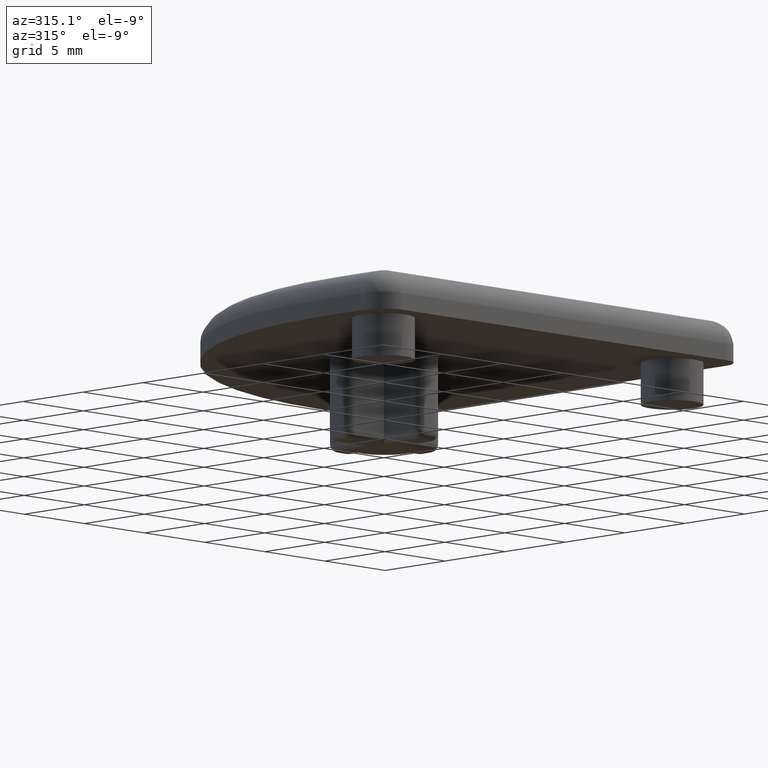
[diagram: clean part render]
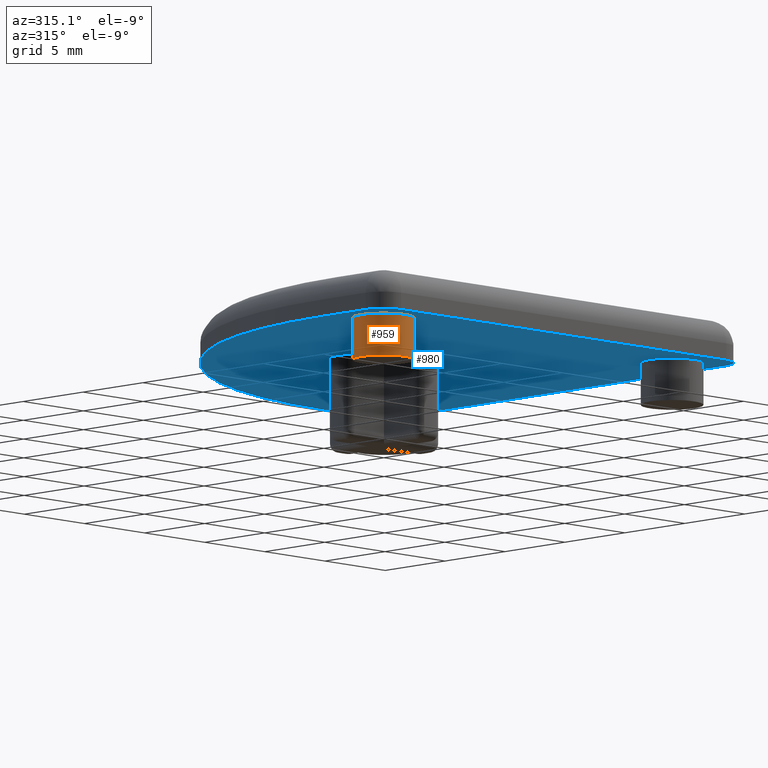
[diagram: same view with the hole feature highlighted: cylindrical wall and planar end face, labeled with their STEP entity ids]
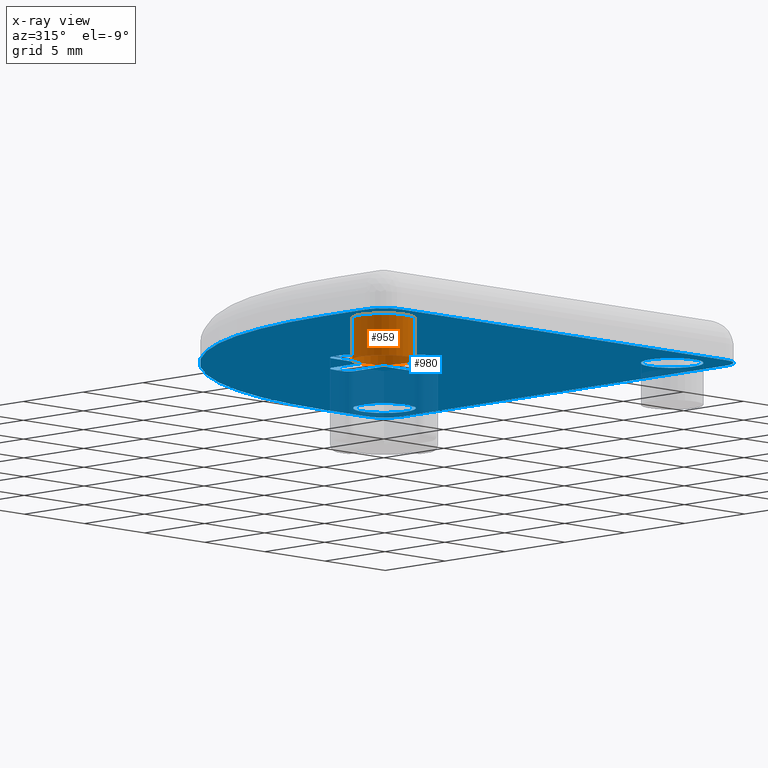
[diagram: x-ray of the same camera — body ghosted, the hole faces saturated]
A machine part, auxiliary view. The highlighted faces form one hole feature of diameter 3.7 mm: the cylindrical wall (entity #959, orange) and its adjacent planar end face (entity #980, blue) — they share a circular edge in the B-rep.
The next image is the same camera in x-ray (body ghosted, the hole faces saturated) — the bore reads through the body.
Wall:
#91=LINE('',#1675,#158);
#158=VECTOR('',#1374,1.85);
#201=CYLINDRICAL_SURFACE('',#1094,1.85);
#254=FACE_OUTER_BOUND('',#319,.T.);
#319=EDGE_LOOP('',(#798,#799,#800,#801));
#391=CIRCLE('',#1095,1.85);
#392=CIRCLE('',#1096,1.85);
#466=VERTEX_POINT('',#1672);
#467=VERTEX_POINT('',#1674);
#586=EDGE_CURVE('',#466,#466,#391,.T.);
#587=EDGE_CURVE('',#466,#467,#91,.T.);
#588=EDGE_CURVE('',#467,#467,#392,.T.);
#798=ORIENTED_EDGE('',*,*,#586,.F.);
#799=ORIENTED_EDGE('',*,*,#587,.T.);
#800=ORIENTED_EDGE('',*,*,#588,.F.);
#801=ORIENTED_EDGE('',*,*,#587,.F.);
#959=ADVANCED_FACE('',(#254),#201,.T.);
#1094=AXIS2_PLACEMENT_3D('',#1671,#1370,#1371);
#1095=AXIS2_PLACEMENT_3D('',#1673,#1372,#1373);
#1096=AXIS2_PLACEMENT_3D('',#1676,#1375,#1376);
#1370=DIRECTION('center_axis',(0.,0.,-1.));
#1371=DIRECTION('ref_axis',(1.,0.,0.));
#1372=DIRECTION('center_axis',(0.,0.,-1.));
#1373=DIRECTION('ref_axis',(1.,0.,0.));
#1374=DIRECTION('',(0.,0.,1.));
#1375=DIRECTION('center_axis',(0.,0.,1.));
#1376=DIRECTION('ref_axis',(1.,0.,0.));
#1671=CARTESIAN_POINT('Origin',(-12.,-12.,0.));
#1672=CARTESIAN_POINT('',(-13.85,-12.,-2.5));
#1673=CARTESIAN_POINT('Origin',(-12.,-12.,-2.5));
#1674=CARTESIAN_POINT('',(-13.85,-12.,0.));
#1675=CARTESIAN_POINT('',(-13.85,-12.,0.));
#1676=CARTESIAN_POINT('Origin',(-12.,-12.,0.));
End face:
#15=FACE_BOUND('',#341,.T.);
#16=FACE_BOUND('',#342,.T.);
#17=FACE_BOUND('',#343,.T.);
#18=FACE_BOUND('',#344,.T.);
#36=PLANE('',#1136);
#79=LINE('',#1634,#146);
#80=LINE('',#1636,#147);
#82=LINE('',#1642,#149);
#83=LINE('',#1644,#150);
#85=LINE('',#1651,#152);
#86=LINE('',#1653,#153);
#88=LINE('',#1659,#155);
#89=LINE('',#1661,#156);
#108=LINE('',#1748,#175);
#110=LINE('',#1754,#177);
#111=LINE('',#1757,#178);
#112=LINE('',#1759,#179);
#146=VECTOR('',#1318,10.);
#147=VECTOR('',#1321,10.);
#149=VECTOR('',#1329,10.);
#150=VECTOR('',#1332,10.);
#152=VECTOR('',#1342,10.);
#153=VECTOR('',#1345,10.);
#155=VECTOR('',#1353,10.);
#156=VECTOR('',#1356,10.);
#175=VECTOR('',#1459,10.);
#177=VECTOR('',#1467,10.);
#178=VECTOR('',#1472,10.);
#179=VECTOR('',#1475,10.);
#275=FACE_OUTER_BOUND('',#340,.T.);
#340=EDGE_LOOP('',(#874,#875,#876,#877,#878,#879,#880,#881));
#341=EDGE_LOOP('',(#882,#883,#884,#885,#886,#887,#888,#889,#890,#891,#892,
#893,#894,#895,#896,#897,#898,#899,#900,#901));
#342=EDGE_LOOP('',(#902));
#343=EDGE_LOOP('',(#903));
#344=EDGE_LOOP('',(#904));
#348=CIRCLE('',#1006,0.5);
#352=CIRCLE('',#1014,0.5);
#356=CIRCLE('',#1020,0.5);
#360=CIRCLE('',#1027,0.5);
#366=CIRCLE('',#1036,0.5);
#370=CIRCLE('',#1044,0.5);
#374=CIRCLE('',#1050,0.5);
#378=CIRCLE('',#1057,0.5);
#385=CIRCLE('',#1076,3.90000000000001);
#386=CIRCLE('',#1080,3.90000000000001);
#387=CIRCLE('',#1085,3.90000000000001);
#388=CIRCLE('',#1089,3.9);
#390=CIRCLE('',#1092,1.85);
#392=CIRCLE('',#1096,1.85);
#394=CIRCLE('',#1100,1.85);
#398=CIRCLE('',#1107,1.5);
#402=CIRCLE('',#1113,1.5);
#406=CIRCLE('',#1120,1.5);
#411=CIRCLE('',#1131,25.);
#415=VERTEX_POINT('',#1487);
#416=VERTEX_POINT('',#1488);
#422=VERTEX_POINT('',#1506);
#423=VERTEX_POINT('',#1507);
#427=VERTEX_POINT('',#1519);
#428=VERTEX_POINT('',#1520);
#432=VERTEX_POINT('',#1535);
#433=VERTEX_POINT('',#1536);
#437=VERTEX_POINT('',#1551);
#438=VERTEX_POINT('',#1552);
#444=VERTEX_POINT('',#1570);
#445=VERTEX_POINT('',#1571);
#449=VERTEX_POINT('',#1583);
#450=VERTEX_POINT('',#1584);
#454=VERTEX_POINT('',#1599);
#455=VERTEX_POINT('',#1600);
#460=VERTEX_POINT('',#1632);
#461=VERTEX_POINT('',#1640);
#462=VERTEX_POINT('',#1649);
#463=VERTEX_POINT('',#1657);
#465=VERTEX_POINT('',#1667);
#467=VERTEX_POINT('',#1674);
#469=VERTEX_POINT('',#1681);
#473=VERTEX_POINT('',#1693);
#474=VERTEX_POINT('',#1694);
#478=VERTEX_POINT('',#1706);
#479=VERTEX_POINT('',#1707);
#483=VERTEX_POINT('',#1722);
#484=VERTEX_POINT('',#1723);
#489=VERTEX_POINT('',#1746);
#490=VERTEX_POINT('',#1750);
#494=EDGE_CURVE('',#415,#416,#348,.F.);
#503=EDGE_CURVE('',#422,#423,#352,.F.);
#509=EDGE_CURVE('',#427,#428,#356,.F.);
#517=EDGE_CURVE('',#432,#433,#360,.F.);
#525=EDGE_CURVE('',#437,#438,#366,.F.);
#534=EDGE_CURVE('',#444,#445,#370,.F.);
#540=EDGE_CURVE('',#449,#450,#374,.F.);
#548=EDGE_CURVE('',#454,#455,#378,.F.);
#568=EDGE_CURVE('',#415,#460,#79,.T.);
#569=EDGE_CURVE('',#460,#428,#80,.T.);
#570=EDGE_CURVE('',#427,#433,#385,.T.);
#572=EDGE_CURVE('',#432,#461,#82,.T.);
#573=EDGE_CURVE('',#461,#450,#83,.T.);
#574=EDGE_CURVE('',#449,#455,#386,.T.);
#576=EDGE_CURVE('',#454,#462,#85,.T.);
#577=EDGE_CURVE('',#462,#445,#86,.T.);
#578=EDGE_CURVE('',#444,#438,#387,.T.);
#580=EDGE_CURVE('',#437,#463,#88,.T.);
#581=EDGE_CURVE('',#463,#423,#89,.T.);
#582=EDGE_CURVE('',#422,#416,#388,.T.);
#585=EDGE_CURVE('',#465,#465,#390,.T.);
#588=EDGE_CURVE('',#467,#467,#392,.T.);
#591=EDGE_CURVE('',#469,#469,#394,.T.);
#595=EDGE_CURVE('',#473,#474,#398,.T.);
#601=EDGE_CURVE('',#478,#479,#402,.T.);
#609=EDGE_CURVE('',#483,#484,#406,.T.);
#623=EDGE_CURVE('',#478,#489,#108,.T.);
#625=EDGE_CURVE('',#489,#490,#411,.T.);
#626=EDGE_CURVE('',#490,#484,#110,.T.);
#627=EDGE_CURVE('',#473,#479,#111,.T.);
#628=EDGE_CURVE('',#483,#474,#112,.T.);
#874=ORIENTED_EDGE('',*,*,#601,.F.);
#875=ORIENTED_EDGE('',*,*,#623,.T.);
#876=ORIENTED_EDGE('',*,*,#625,.T.);
#877=ORIENTED_EDGE('',*,*,#626,.T.);
#878=ORIENTED_EDGE('',*,*,#609,.F.);
#879=ORIENTED_EDGE('',*,*,#628,.T.);
#880=ORIENTED_EDGE('',*,*,#595,.F.);
#881=ORIENTED_EDGE('',*,*,#627,.T.);
#882=ORIENTED_EDGE('',*,*,#573,.T.);
#883=ORIENTED_EDGE('',*,*,#540,.F.);
#884=ORIENTED_EDGE('',*,*,#574,.T.);
#885=ORIENTED_EDGE('',*,*,#548,.F.);
#886=ORIENTED_EDGE('',*,*,#576,.T.);
#887=ORIENTED_EDGE('',*,*,#577,.T.);
#888=ORIENTED_EDGE('',*,*,#534,.F.);
#889=ORIENTED_EDGE('',*,*,#578,.T.);
#890=ORIENTED_EDGE('',*,*,#525,.F.);
#891=ORIENTED_EDGE('',*,*,#580,.T.);
#892=ORIENTED_EDGE('',*,*,#581,.T.);
#893=ORIENTED_EDGE('',*,*,#503,.F.);
#894=ORIENTED_EDGE('',*,*,#582,.T.);
#895=ORIENTED_EDGE('',*,*,#494,.F.);
#896=ORIENTED_EDGE('',*,*,#568,.T.);
#897=ORIENTED_EDGE('',*,*,#569,.T.);
#898=ORIENTED_EDGE('',*,*,#509,.F.);
#899=ORIENTED_EDGE('',*,*,#570,.T.);
#900=ORIENTED_EDGE('',*,*,#517,.F.);
#901=ORIENTED_EDGE('',*,*,#572,.T.);
#902=ORIENTED_EDGE('',*,*,#585,.T.);
#903=ORIENTED_EDGE('',*,*,#588,.T.);
#904=ORIENTED_EDGE('',*,*,#591,.T.);
#980=ADVANCED_FACE('',(#275,#15,#16,#17,#18),#36,.F.);
#1006=AXIS2_PLACEMENT_3D('',#1489,#1149,#1150);
#1014=AXIS2_PLACEMENT_3D('',#1508,#1169,#1170);
#1020=AXIS2_PLACEMENT_3D('',#1521,#1183,#1184);
#1027=AXIS2_PLACEMENT_3D('',#1537,#1201,#1202);
#1036=AXIS2_PLACEMENT_3D('',#1553,#1221,#1222);
#1044=AXIS2_PLACEMENT_3D('',#1572,#1241,#1242);
#1050=AXIS2_PLACEMENT_3D('',#1585,#1255,#1256);
#1057=AXIS2_PLACEMENT_3D('',#1601,#1273,#1274);
#1076=AXIS2_PLACEMENT_3D('',#1638,#1324,#1325);
#1080=AXIS2_PLACEMENT_3D('',#1646,#1335,#1336);
#1085=AXIS2_PLACEMENT_3D('',#1655,#1348,#1349);
#1089=AXIS2_PLACEMENT_3D('',#1663,#1359,#1360);
#1092=AXIS2_PLACEMENT_3D('',#1669,#1366,#1367);
#1096=AXIS2_PLACEMENT_3D('',#1676,#1375,#1376);
#1100=AXIS2_PLACEMENT_3D('',#1683,#1384,#1385);
#1107=AXIS2_PLACEMENT_3D('',#1695,#1398,#1399);
#1113=AXIS2_PLACEMENT_3D('',#1708,#1412,#1413);
#1120=AXIS2_PLACEMENT_3D('',#1724,#1430,#1431);
#1131=AXIS2_PLACEMENT_3D('',#1752,#1463,#1464);
#1136=AXIS2_PLACEMENT_3D('',#1760,#1476,#1477);
#1149=DIRECTION('center_axis',(0.,0.,1.));
#1150=DIRECTION('ref_axis',(-0.750000000000001,0.661437827766147,0.));
#1169=DIRECTION('center_axis',(0.,0.,1.));
#1170=DIRECTION('ref_axis',(0.75,0.661437827766147,0.));
#1183=DIRECTION('center_axis',(0.,0.,1.));
#1184=DIRECTION('ref_axis',(-0.661437827766147,0.750000000000001,0.));
#1201=DIRECTION('center_axis',(0.,0.,1.));
#1202=DIRECTION('ref_axis',(-0.661437827766147,-0.750000000000001,0.));
#1221=DIRECTION('center_axis',(0.,0.,1.));
#1222=DIRECTION('ref_axis',(0.661437827766142,0.750000000000005,0.));
#1241=DIRECTION('center_axis',(0.,0.,1.));
#1242=DIRECTION('ref_axis',(0.661437827766153,-0.749999999999995,0.));
#1255=DIRECTION('center_axis',(0.,0.,1.));
#1256=DIRECTION('ref_axis',(-0.75,-0.661437827766147,0.));
#1273=DIRECTION('center_axis',(0.,0.,1.));
#1274=DIRECTION('ref_axis',(0.75,-0.661437827766148,0.));
#1318=DIRECTION('',(0.,-1.,0.));
#1321=DIRECTION('',(-1.,0.,0.));
#1324=DIRECTION('center_axis',(0.,0.,1.));
#1325=DIRECTION('ref_axis',(0.971465846471854,0.237179487179487,0.));
#1329=DIRECTION('',(1.,-4.8460754924524E-17,0.));
#1332=DIRECTION('',(0.,-1.,0.));
#1335=DIRECTION('center_axis',(0.,0.,1.));
#1336=DIRECTION('ref_axis',(-0.237179487179501,0.97146584647185,0.));
#1342=DIRECTION('',(0.,1.,0.));
#1345=DIRECTION('',(1.,0.,0.));
#1348=DIRECTION('center_axis',(0.,0.,1.));
#1349=DIRECTION('ref_axis',(-0.971465846471874,-0.237179487179402,0.));
#1353=DIRECTION('',(-1.,-4.8460754924524E-17,0.));
#1356=DIRECTION('',(9.6921509849048E-17,1.,0.));
#1359=DIRECTION('center_axis',(0.,0.,1.));
#1360=DIRECTION('ref_axis',(0.237179487179731,-0.971465846471794,0.));
#1366=DIRECTION('center_axis',(0.,0.,1.));
#1367=DIRECTION('ref_axis',(1.,0.,0.));
#1375=DIRECTION('center_axis',(0.,0.,1.));
#1376=DIRECTION('ref_axis',(1.,0.,0.));
#1384=DIRECTION('center_axis',(0.,0.,1.));
#1385=DIRECTION('ref_axis',(1.,0.,0.));
#1398=DIRECTION('center_axis',(0.,0.,1.));
#1399=DIRECTION('ref_axis',(0.707106781186548,-0.707106781186548,0.));
#1412=DIRECTION('center_axis',(0.,0.,1.));
#1413=DIRECTION('ref_axis',(-0.707106781186548,-0.707106781186548,0.));
#1430=DIRECTION('center_axis',(0.,0.,1.));
#1431=DIRECTION('ref_axis',(0.707106781186547,0.707106781186549,0.));
#1459=DIRECTION('',(0.,1.,0.));
#1463=DIRECTION('center_axis',(0.,0.,-1.));
#1464=DIRECTION('ref_axis',(3.10862446895044E-16,-1.,0.));
#1467=DIRECTION('',(1.,8.88178419700124E-16,0.));
#1472=DIRECTION('',(-1.,0.,0.));
#1475=DIRECTION('',(0.,-1.,0.));
#1476=DIRECTION('center_axis',(0.,0.,1.));
#1477=DIRECTION('ref_axis',(1.,0.,0.));
#1487=CARTESIAN_POINT('',(-0.925,3.37333292161149,0.));
#1488=CARTESIAN_POINT('',(-0.487499999999999,3.8694112924361,0.));
#1489=CARTESIAN_POINT('Origin',(-0.424999999999999,3.37333292161149,0.));
#1506=CARTESIAN_POINT('',(0.487500000000001,3.8694112924361,0.));
#1507=CARTESIAN_POINT('',(0.925,3.37333292161149,0.));
#1508=CARTESIAN_POINT('Origin',(0.425000000000001,3.37333292161149,0.));
#1519=CARTESIAN_POINT('',(-3.86941129243196,0.4875,0.));
#1520=CARTESIAN_POINT('',(-3.37333292160735,0.925,0.));
#1521=CARTESIAN_POINT('Origin',(-3.37333292160735,0.425,0.));
#1535=CARTESIAN_POINT('',(-3.37333292160735,-0.925,0.));
#1536=CARTESIAN_POINT('',(-3.86941129243196,-0.4875,0.));
#1537=CARTESIAN_POINT('Origin',(-3.37333292160735,-0.425,0.));
#1551=CARTESIAN_POINT('',(3.37333292160571,0.925,0.));
#1552=CARTESIAN_POINT('',(3.86941129243032,0.487500000000008,0.));
#1553=CARTESIAN_POINT('Origin',(3.37333292160571,0.425000000000001,0.));
#1570=CARTESIAN_POINT('',(3.86941129243033,-0.487499999999992,0.));
#1571=CARTESIAN_POINT('',(3.37333292160572,-0.925,0.));
#1572=CARTESIAN_POINT('Origin',(3.37333292160572,-0.424999999999999,0.));
#1583=CARTESIAN_POINT('',(-0.4875,-3.8694112924322,0.));
#1584=CARTESIAN_POINT('',(-0.925,-3.37333292160759,0.));
#1585=CARTESIAN_POINT('Origin',(-0.425,-3.37333292160759,0.));
#1599=CARTESIAN_POINT('',(0.925,-3.37333292160759,0.));
#1600=CARTESIAN_POINT('',(0.4875,-3.8694112924322,0.));
#1601=CARTESIAN_POINT('Origin',(0.425,-3.37333292160759,0.));
#1632=CARTESIAN_POINT('',(-0.925,0.925,0.));
#1634=CARTESIAN_POINT('',(-0.925,-0.861118065911419,0.));
#1636=CARTESIAN_POINT('',(-0.570740334708694,0.925,0.));
#1638=CARTESIAN_POINT('Origin',(4.9960036108132E-15,6.93889390390723E-16,
0.));
#1640=CARTESIAN_POINT('',(-0.925,-0.925,0.));
#1642=CARTESIAN_POINT('',(0.861118065911421,-0.925,0.));
#1644=CARTESIAN_POINT('',(-0.925,-3.21797646653153,0.));
#1646=CARTESIAN_POINT('Origin',(-1.38777878078145E-15,-2.27595720048157E-13,
0.));
#1649=CARTESIAN_POINT('',(0.925,-0.925,0.));
#1651=CARTESIAN_POINT('',(0.925,-1.78611806591142,0.));
#1653=CARTESIAN_POINT('',(3.21797646653154,-0.925,0.));
#1655=CARTESIAN_POINT('Origin',(-1.64424029946986E-12,-5.09314812546791E-14,
0.));
#1657=CARTESIAN_POINT('',(0.925,0.925,0.));
#1659=CARTESIAN_POINT('',(1.78611806591142,0.925,0.));
#1661=CARTESIAN_POINT('',(0.925,0.570740334708696,0.));
#1663=CARTESIAN_POINT('Origin',(-1.2490009027033E-15,4.13169498614252E-12,
0.));
#1667=CARTESIAN_POINT('',(10.15,-12.,0.));
#1669=CARTESIAN_POINT('Origin',(12.,-12.,0.));
#1674=CARTESIAN_POINT('',(-13.85,-12.,0.));
#1676=CARTESIAN_POINT('Origin',(-12.,-12.,0.));
#1681=CARTESIAN_POINT('',(10.15,12.,0.));
#1683=CARTESIAN_POINT('Origin',(12.,12.,0.));
#1693=CARTESIAN_POINT('',(13.5,-15.,0.));
#1694=CARTESIAN_POINT('',(15.,-13.5,0.));
#1695=CARTESIAN_POINT('Origin',(13.5,-13.5,0.));
#1706=CARTESIAN_POINT('',(-15.,-13.5,0.));
#1707=CARTESIAN_POINT('',(-13.5,-15.,0.));
#1708=CARTESIAN_POINT('Origin',(-13.5,-13.5,0.));
#1722=CARTESIAN_POINT('',(15.,13.5,0.));
#1723=CARTESIAN_POINT('',(13.5,15.,0.));
#1724=CARTESIAN_POINT('Origin',(13.5,13.5,0.));
#1746=CARTESIAN_POINT('',(-15.,-10.,0.));
#1748=CARTESIAN_POINT('',(-15.,-15.,0.));
#1750=CARTESIAN_POINT('',(9.99999999999999,15.,0.));
#1752=CARTESIAN_POINT('Origin',(10.,-10.,0.));
#1754=CARTESIAN_POINT('',(9.99999999999999,15.,0.));
#1757=CARTESIAN_POINT('',(15.,-15.,0.));
#1759=CARTESIAN_POINT('',(15.,15.,0.));
#1760=CARTESIAN_POINT('Origin',(2.64723613182284,-2.64723613182284,0.));